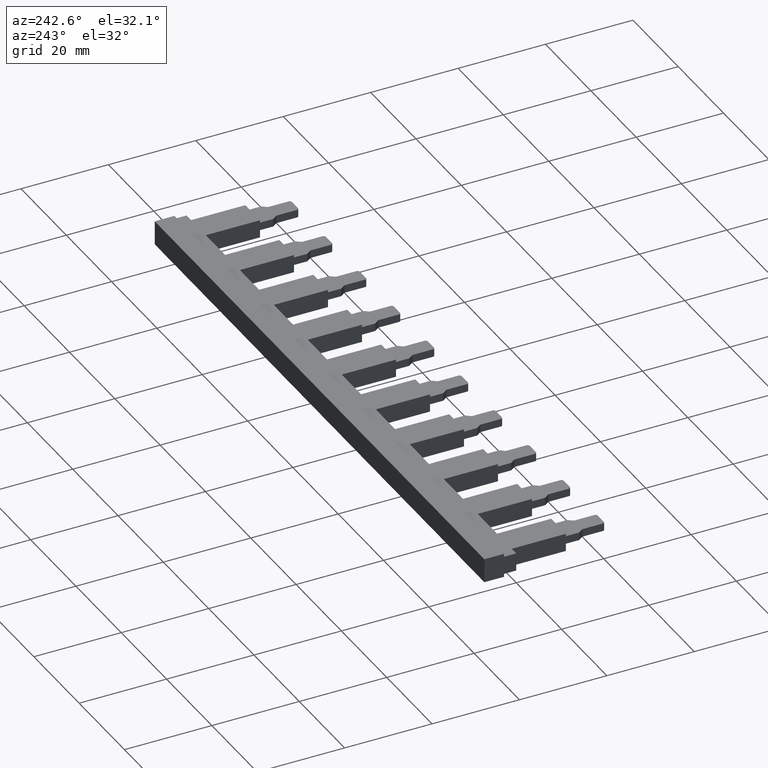
[diagram: clean part render]
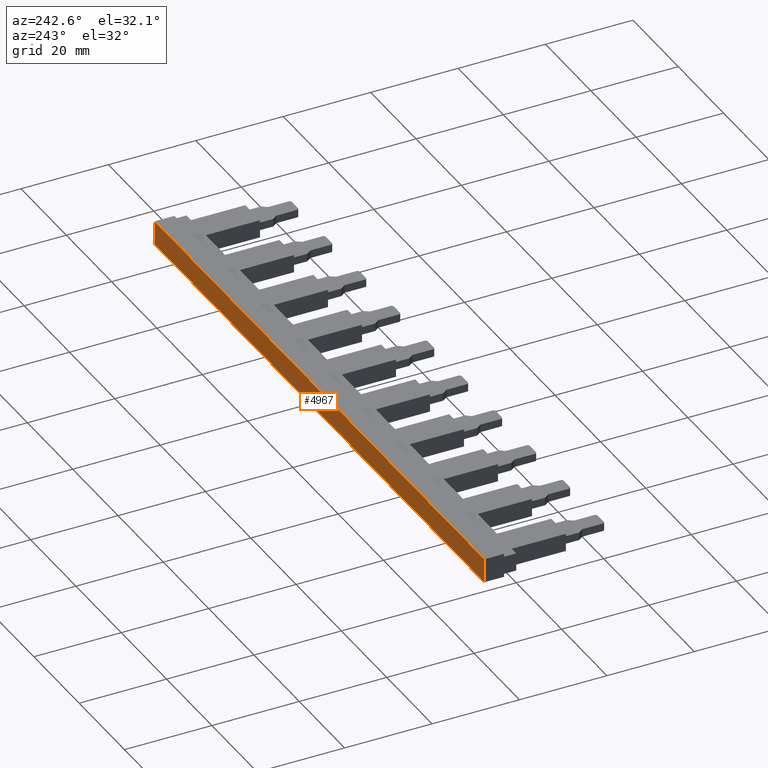
[diagram: same view with one face highlighted and labeled with its STEP entity id]
A machine part, auxiliary view. The second image highlights one B-rep face of the part: STEP entity #4967.
In plain terms, the highlighted planar face has unit normal (0, -1, 0).
Its self-contained STEP definition (entity closure, byte-faithful):
#43 = AXIS2_PLACEMENT_3D ( 'NONE', #2287, #2334, #2341 ) ;
#195 = VECTOR ( 'NONE', #2323, 1000.000000000000000 ) ;
#210 = VECTOR ( 'NONE', #3278, 1000.000000000000000 ) ;
#212 = VECTOR ( 'NONE', #3188, 1000.000000000000000 ) ;
#240 = VECTOR ( 'NONE', #3247, 1000.000000000000000 ) ;
#997 = EDGE_LOOP ( 'NONE', ( #4214, #4343, #4374, #4362 ) ) ;
#1546 = CARTESIAN_POINT ( 'NONE',  ( 0.0000000000000000000, 7.300000000000000700, -0.7000000000000002900 ) ) ;
#1553 = CARTESIAN_POINT ( 'NONE',  ( 0.0000000000000000000, 7.300000000000000700, 4.799999999999999800 ) ) ;
#1630 = CARTESIAN_POINT ( 'NONE',  ( 145.5000000000000000, 7.300000000000000700, 4.799999999999999800 ) ) ;
#1639 = CARTESIAN_POINT ( 'NONE',  ( 145.5000000000000000, 7.300000000000000700, -0.7000000000000002900 ) ) ;
#2248 = LINE ( 'NONE', #2258, #195 ) ;
#2257 = FACE_OUTER_BOUND ( 'NONE', #997, .T. ) ;
#2258 = CARTESIAN_POINT ( 'NONE',  ( 40.50000000000000000, 7.300000000000000700, 4.799999999999999800 ) ) ;
#2281 = PLANE ( 'NONE',  #43 ) ;
#2287 = CARTESIAN_POINT ( 'NONE',  ( 40.50000000000000000, 7.300000000000000700, -0.8000000000000003800 ) ) ;
#2323 = DIRECTION ( 'NONE',  ( -1.000000000000000000, 0.0000000000000000000, 0.0000000000000000000 ) ) ;
#2334 = DIRECTION ( 'NONE',  ( 0.0000000000000000000, -1.000000000000000000, 0.0000000000000000000 ) ) ;
#2341 = DIRECTION ( 'NONE',  ( 0.0000000000000000000, -0.0000000000000000000, -1.000000000000000000 ) ) ;
#3165 = CARTESIAN_POINT ( 'NONE',  ( 0.0000000000000000000, 7.300000000000000700, -0.8000000000000003800 ) ) ;
#3188 = DIRECTION ( 'NONE',  ( -0.0000000000000000000, 0.0000000000000000000, 1.000000000000000000 ) ) ;
#3191 = LINE ( 'NONE', #3165, #212 ) ;
#3247 = DIRECTION ( 'NONE',  ( 1.000000000000000000, 0.0000000000000000000, 0.0000000000000000000 ) ) ;
#3253 = LINE ( 'NONE', #3275, #240 ) ;
#3272 = LINE ( 'NONE', #3277, #210 ) ;
#3275 = CARTESIAN_POINT ( 'NONE',  ( 40.50000000000000000, 7.300000000000000700, -0.7000000000000002900 ) ) ;
#3277 = CARTESIAN_POINT ( 'NONE',  ( 145.5000000000000000, 7.300000000000000700, -0.8000000000000003800 ) ) ;
#3278 = DIRECTION ( 'NONE',  ( -0.0000000000000000000, -0.0000000000000000000, -1.000000000000000000 ) ) ;
#4214 = ORIENTED_EDGE ( 'NONE', *, *, #5138, .T. ) ;
#4343 = ORIENTED_EDGE ( 'NONE', *, *, #5148, .F. ) ;
#4362 = ORIENTED_EDGE ( 'NONE', *, *, #5162, .F. ) ;
#4374 = ORIENTED_EDGE ( 'NONE', *, *, #5170, .T. ) ;
#4586 = VERTEX_POINT ( 'NONE', #1546 ) ;
#4589 = VERTEX_POINT ( 'NONE', #1553 ) ;
#4611 = VERTEX_POINT ( 'NONE', #1639 ) ;
#4644 = VERTEX_POINT ( 'NONE', #1630 ) ;
#4967 = ADVANCED_FACE ( 'NONE', ( #2257 ), #2281, .F. ) ;
#5138 = EDGE_CURVE ( 'NONE', #4586, #4589, #3191, .T. ) ;
#5148 = EDGE_CURVE ( 'NONE', #4644, #4589, #2248, .T. ) ;
#5162 = EDGE_CURVE ( 'NONE', #4586, #4611, #3253, .T. ) ;
#5170 = EDGE_CURVE ( 'NONE', #4644, #4611, #3272, .T. ) ;